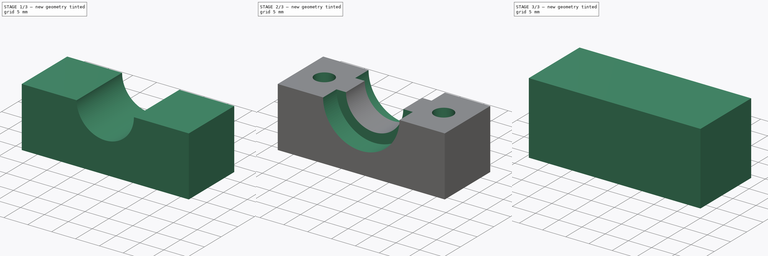
[diagram: build sequence overview — one tinted view per stage of 3, left to right]
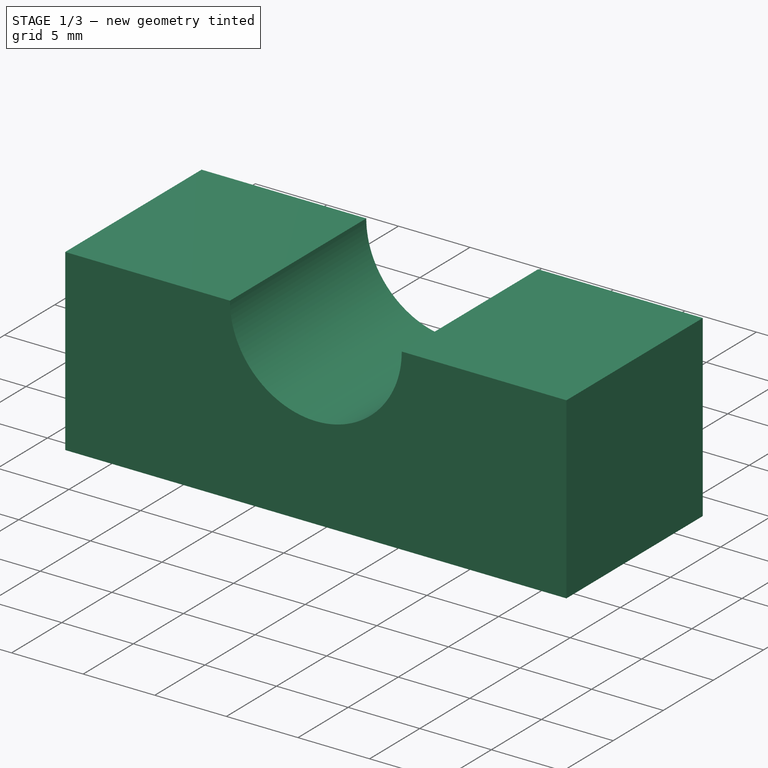
[diagram: stage 1 of 3 — iso view after this stage's code; geometry added in this stage tinted green]
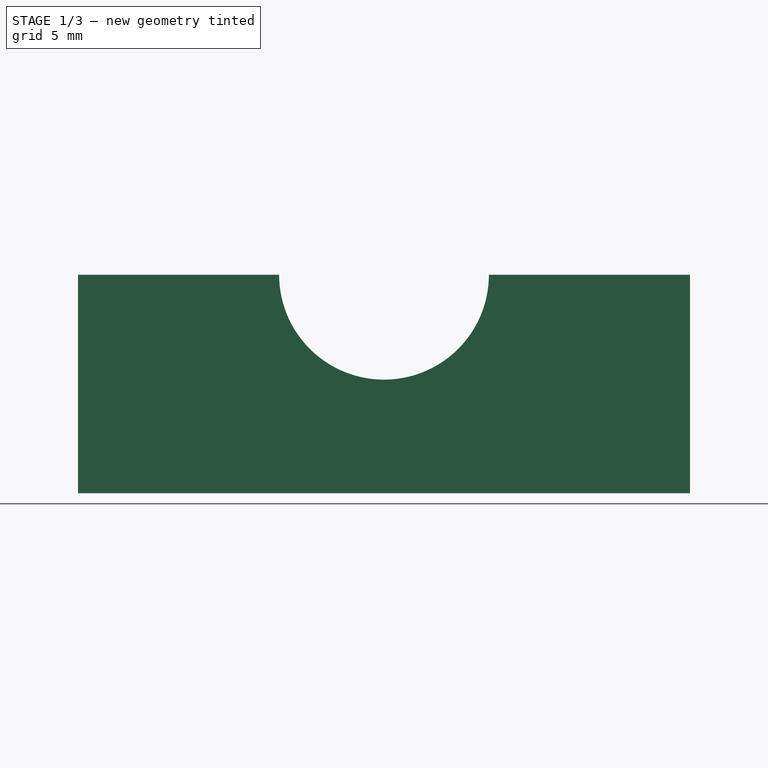
[diagram: stage 1 of 3 — front view after this stage's code; geometry added in this stage tinted green]
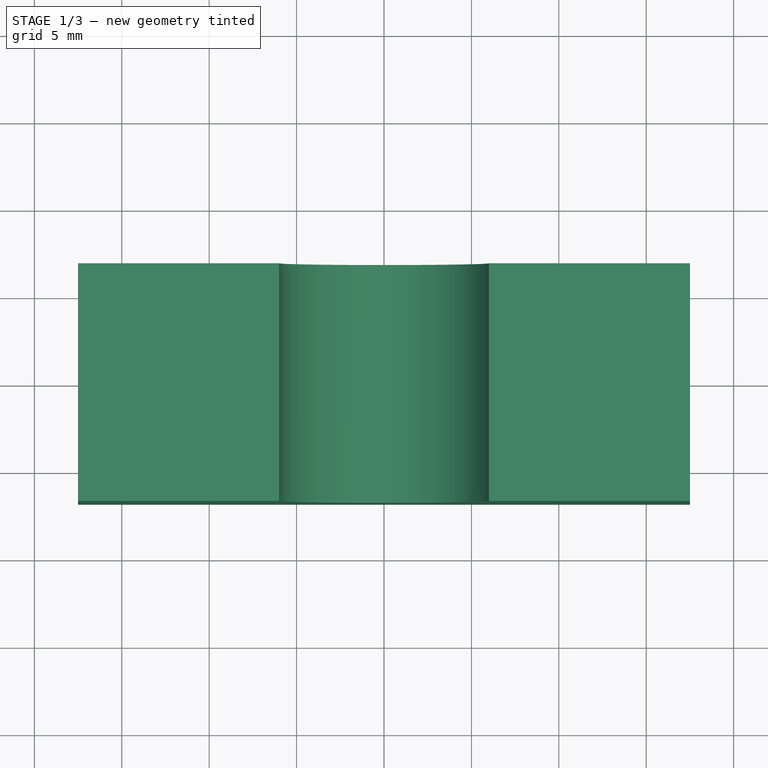
[diagram: stage 1 of 3 — top view after this stage's code; geometry added in this stage tinted green]
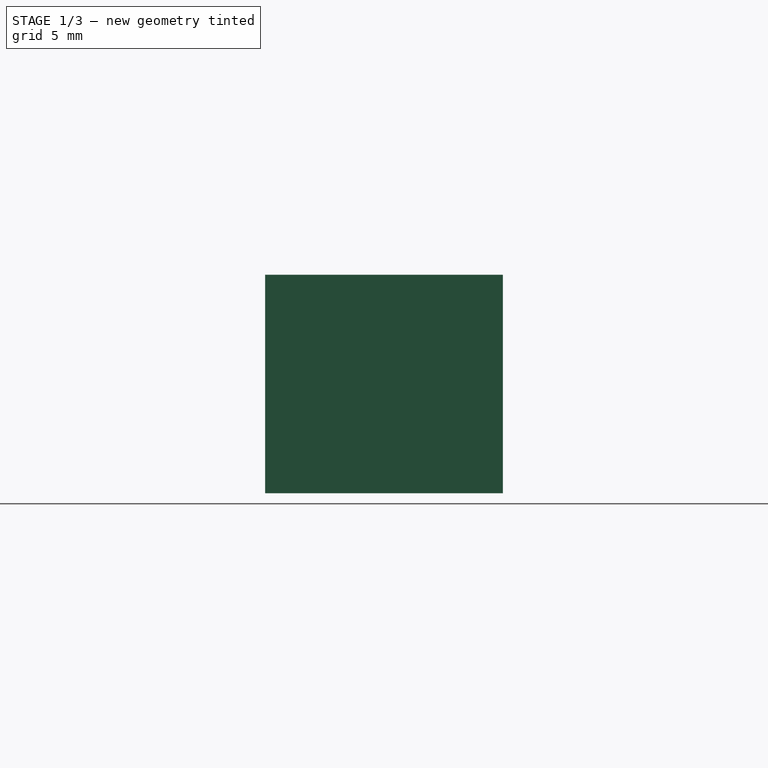
[diagram: stage 1 of 3 — right view after this stage's code; geometry added in this stage tinted green]
FCSTD DOCUMENT  (FreeCAD 0.18.3R)
Label: abrazadera_Hot_end
License: All rights reserved
LicenseURL: http://en.wikipedia.org/wiki/All_rights_reserved
objects: Path::FeaturePython×6, Sketcher::SketchObject×5, PartDesign::Pocket×4, Part::FeaturePython×2, PartDesign::Pad×1, PartDesign::Body×1, App::FeaturePython×1, App::DocumentObjectGroup×1, Path::FeatureCompoundPython×1
note: 22 computed .brp shape members not serialized (recipe doc carries the construction recipe); baked Part::Feature solids carry a one-line shape summary decoded from their .brp

FEATURE [Sketcher::SketchObject] Sketch
  MapMode = 5
  Support = -> [XY_Plane]
  sketch-geometry (4):
    g0: LineSegment StartX=-17.5 StartY=6.8 StartZ=0 EndX=17.5 EndY=6.8 EndZ=0
    g1: LineSegment StartX=17.5 StartY=6.8 StartZ=0 EndX=17.5 EndY=-6.8 EndZ=0
    g2: LineSegment StartX=17.5 StartY=-6.8 StartZ=0 EndX=-17.5 EndY=-6.8 EndZ=0
    g3: LineSegment StartX=-17.5 StartY=-6.8 StartZ=0 EndX=-17.5 EndY=6.8 EndZ=0
  constraints (11):
    c: Coincident(g0,g1)
    c: Coincident(g1,g2)
    c: Coincident(g2,g3)
    c: Coincident(g3,g0)
    c: Horizontal(g0)
    c: Horizontal(g2)
    c: Vertical(g1)
    c: Vertical(g3)
    c: Symmetric(g1,g0,g-1)
    c: DistanceX(g0,g0) = 35
    c: DistanceY(g1,g1) = 13.6
FEATURE [PartDesign::Pad] Pad
  Length = 12.5
  Length2 = 100
  Profile = -> Sketch
  Refine = true
  Type = 0
FEATURE [Sketcher::SketchObject] Sketch001
  ExternalGeometry = -> [Pad]
  MapMode = 5
  Placement = pos=(0,-6.8,0) rot=(1,0,0;1.5708rad)
  Support = -> [Pad]
  sketch-geometry (1):
    g0: Circle CenterX=0 CenterY=12.5 CenterZ=0 NormalX=0 NormalY=0 NormalZ=1 AngleXU=0 Radius=6
  constraints (3):
    c: PointOnObject(g0,g-2)
    c: PointOnObject(g0,g-3)
    c: Radius(g0) = 6
FEATURE [PartDesign::Pocket] Pocket
  BaseFeature = -> Pad
  Length = 5
  Length2 = 100
  Profile = -> Sketch001
  Refine = true
  Type = 1
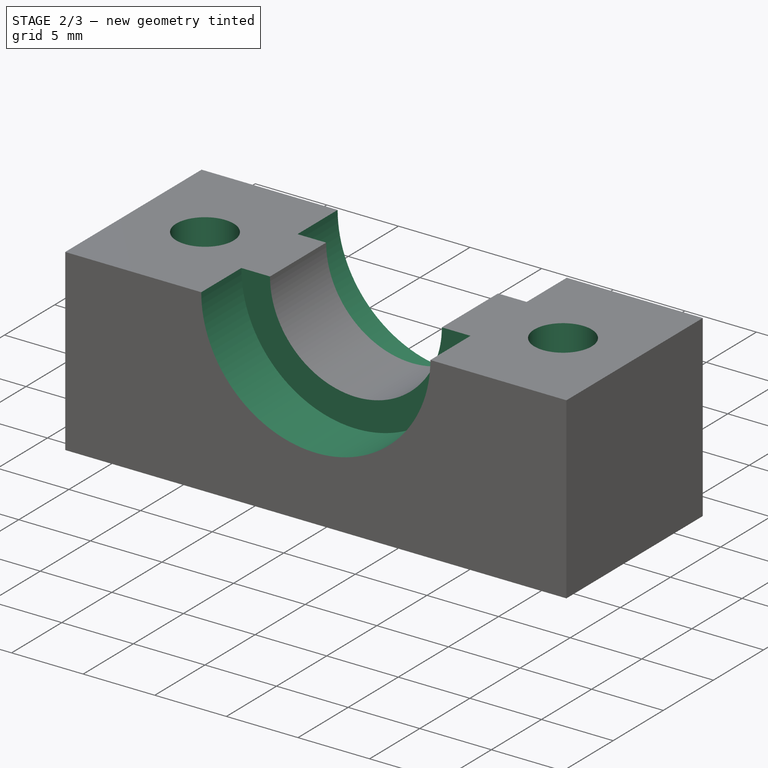
[diagram: stage 2 of 3 — iso view after this stage's code; geometry added in this stage tinted green]
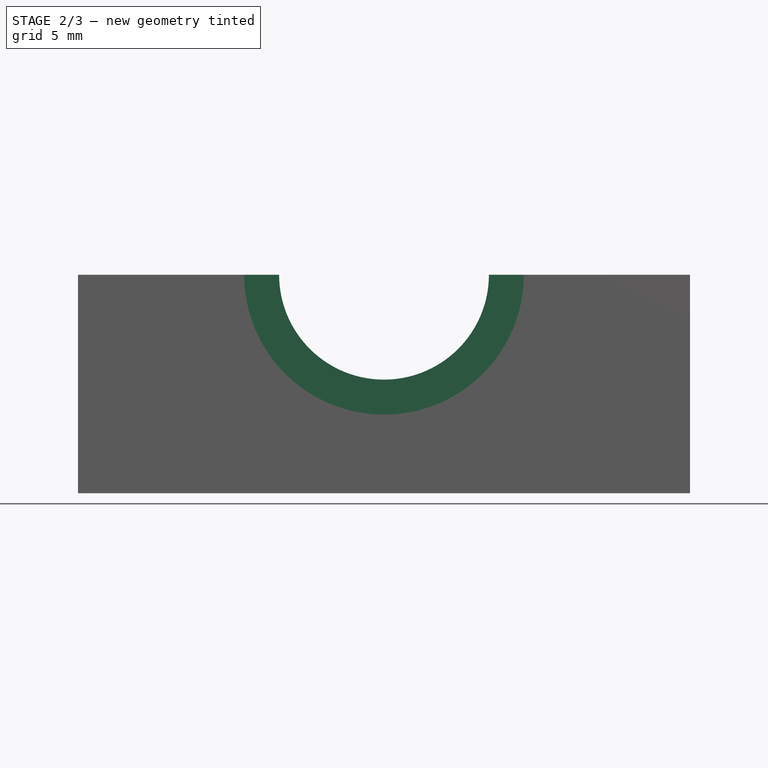
[diagram: stage 2 of 3 — front view after this stage's code; geometry added in this stage tinted green]
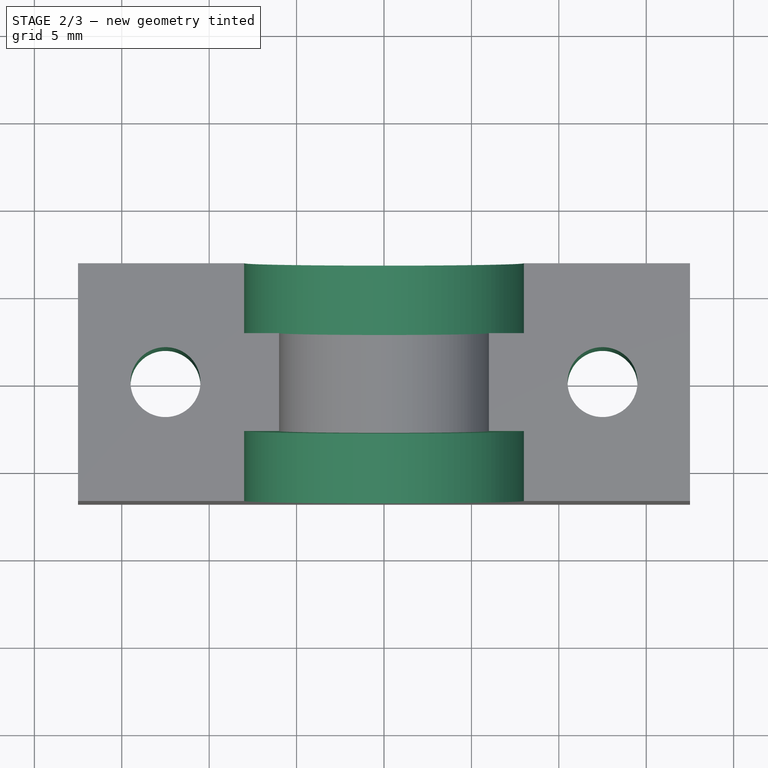
[diagram: stage 2 of 3 — top view after this stage's code; geometry added in this stage tinted green]
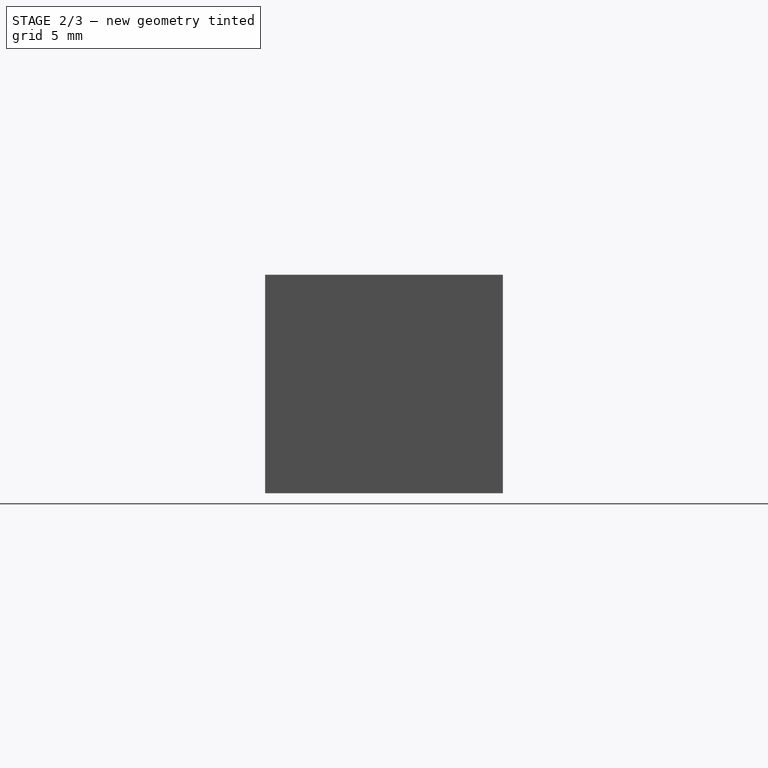
[diagram: stage 2 of 3 — right view after this stage's code; geometry added in this stage tinted green]
FEATURE [Sketcher::SketchObject] Sketch002
  MapMode = 5
  Placement = pos=(0,0,0) rot=(1,0,0;3.14159rad)
  Support = -> [Pocket]
  expr: Constraints[3] = Constraints.Rh
  sketch-geometry (2):
    g0: Circle CenterX=-12.5 CenterY=0 CenterZ=0 NormalX=0 NormalY=0 NormalZ=1 AngleXU=0 Radius=2
    g1: Circle CenterX=12.5 CenterY=0 CenterZ=0 NormalX=0 NormalY=0 NormalZ=1 AngleXU=0 Radius=2
  constraints (5):
    c: PointOnObject(g0,g-1)
    c: Radius(g0) = 2  'Rh'
    c: DistanceX(g0,g-1) = 12.5
    c: Radius(g1) = 2
    c: Symmetric(g1,g0,g-2)
FEATURE [PartDesign::Pocket] Pocket001
  BaseFeature = -> Pocket
  Length = 5
  Length2 = 100
  Profile = -> Sketch002
  Refine = true
  Type = 1
FEATURE [Sketcher::SketchObject] Sketch003
  ExternalGeometry = -> [Pocket001]
  MapMode = 5
  Placement = pos=(0,-6.8,0) rot=(1,0,0;1.5708rad)
  Support = -> [Pocket001]
  sketch-geometry (1):
    g0: Circle CenterX=0 CenterY=12.5 CenterZ=0 NormalX=0 NormalY=0 NormalZ=1 AngleXU=0 Radius=8
  constraints (2):
    c: Coincident(g0,g-3)
    c: Radius(g0) = 8
FEATURE [PartDesign::Pocket] Pocket002
  BaseFeature = -> Pocket001
  Length = 4
  Length2 = 100
  Profile = -> Sketch003
  Refine = true
  Type = 0
FEATURE [Sketcher::SketchObject] Sketch004
  ExternalGeometry = -> [Pocket002]
  MapMode = 5
  Placement = pos=(0,6.8,0) rot=(0,0.707107,0.707107;3.14159rad)
  Support = -> [Pocket002]
  sketch-geometry (1):
    g0: Circle CenterX=0 CenterY=12.5 CenterZ=0 NormalX=0 NormalY=0 NormalZ=1 AngleXU=0 Radius=8
  constraints (2):
    c: Coincident(g0,g-3)
    c: Radius(g0) = 8
FEATURE [PartDesign::Pocket] Pocket003
  BaseFeature = -> Pocket002
  Length = 4
  Length2 = 100
  Profile = -> Sketch004
  Refine = true
  Type = 0
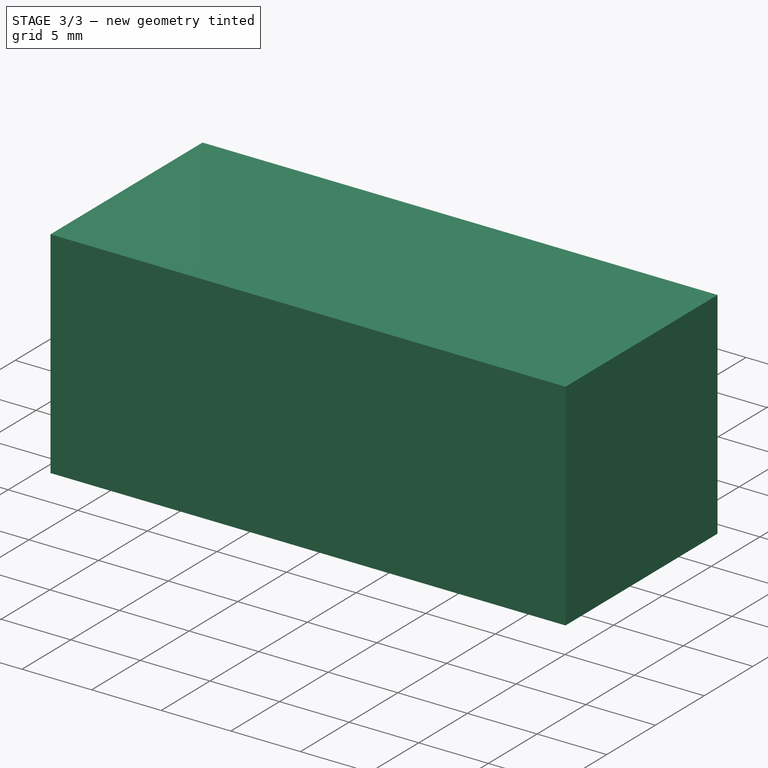
[diagram: stage 3 of 3 — iso view after this stage's code; geometry added in this stage tinted green]
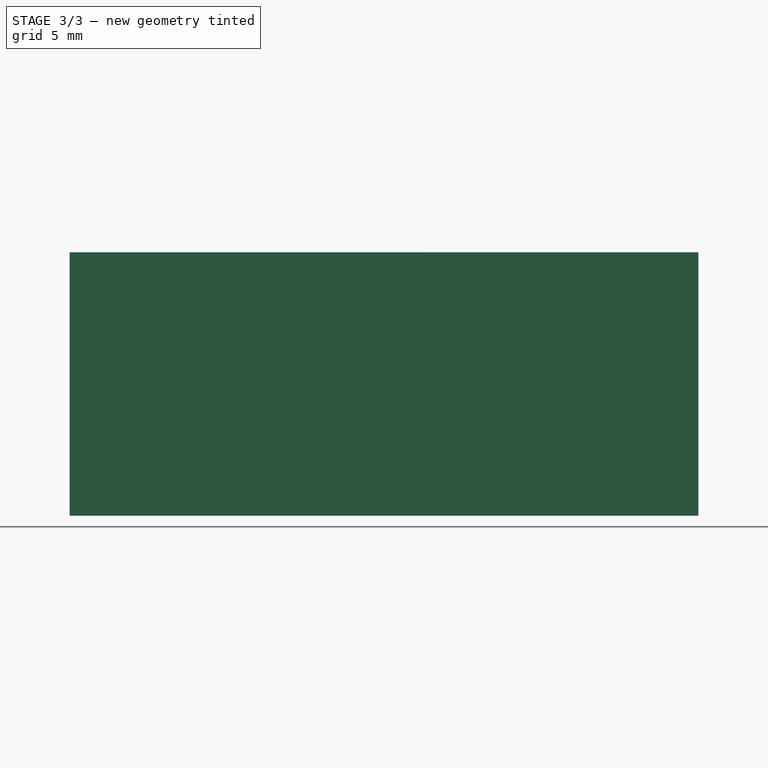
[diagram: stage 3 of 3 — front view after this stage's code; geometry added in this stage tinted green]
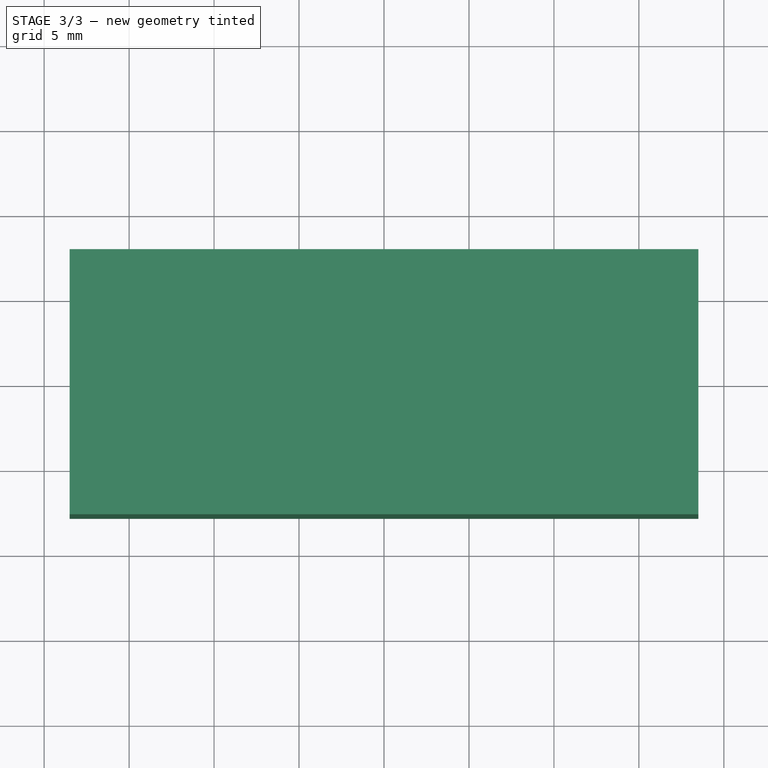
[diagram: stage 3 of 3 — top view after this stage's code; geometry added in this stage tinted green]
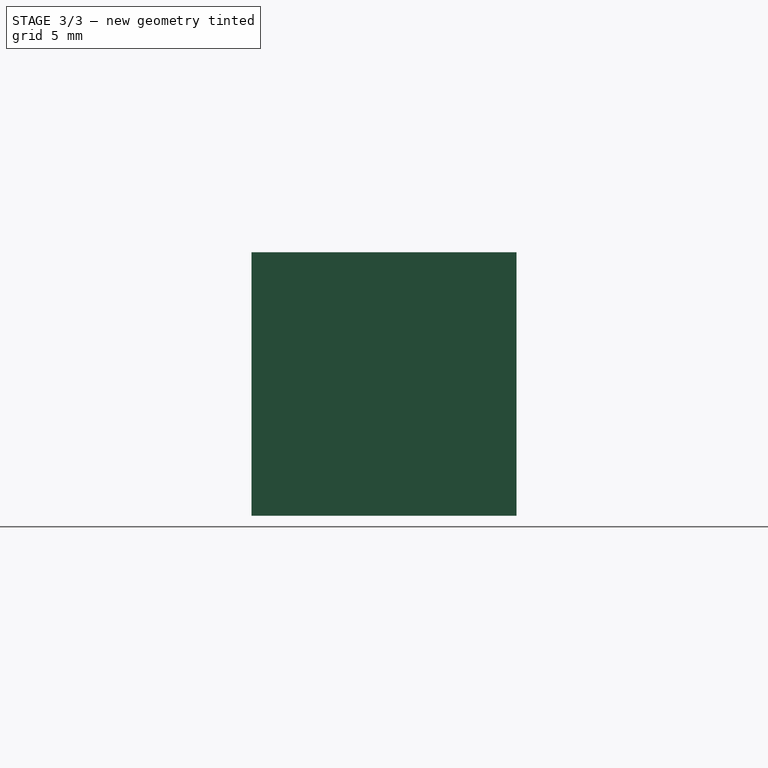
[diagram: stage 3 of 3 — right view after this stage's code; geometry added in this stage tinted green]
FEATURE [PartDesign::Body] Body
  Group = -> [Sketch,Pad,Sketch001,Pocket,Sketch002,Pocket001,Sketch003,Pocket002,Sketch004,Pocket003]
  Origin = -> Origin
  Tip = -> Pocket003
FEATURE [App::FeaturePython] SetupSheet  # Path/CAM operation (typed FeaturePython)
  ClearanceHeightExpression = OpStockZMax+SetupSheet.ClearanceHeightOffset
  ClearanceHeightOffset = 3
  FinalDepthExpression = 0
  HorizRapid = 5
  SafeHeightExpression = OpStockZMax+SetupSheet.SafeHeightOffset
  SafeHeightOffset = 3
  StartDepthExpression = 14
  StepDownExpression = 1.5
  VertRapid = 3
FEATURE [Part::FeaturePython] Clone  label="Model-Body"  # Draft clone (typed FeaturePython)
  AttacherType = Attacher::AttachEngine3D
  Fuse = false
  Objects = -> [Body]
  PathResource = Model
  Scale = (1,1,1)
FEATURE [App::DocumentObjectGroup] Model
  Group = -> [Clone]
FEATURE [Path::FeaturePython] Default_Tool  label="Default Tool"  # Path/CAM operation (typed FeaturePython)
  HorizFeed = 1.67
  HorizRapid = 5
  SpindleDir = 1
  SpindleSpeed = 0
  ToolNumber = 1
  VertFeed = 1.33
  VertRapid = 3
  expr: HorizRapid = SetupSheet.HorizRapid
  expr: VertRapid = SetupSheet.VertRapid
FEATURE [Part::FeaturePython] Stock  # WARN: FeaturePython — macro-defined, semantics opaque (R4)
  Base = -> Model
  ExtXneg = 1
  ExtXpos = 1
  ExtYneg = 1
  ExtYpos = 1
  ExtZneg = 1.5
  ExtZpos = 1.5
  Placement = pos=(-17.5,-6.8,0) rot=(0,0,1;0rad)
  StockType = FromBase
FEATURE [Path::FeaturePython] Pocket_3D  # Path/CAM operation (typed FeaturePython)
  Active = true
  AreaParams:
    Tolerance = 1e-07
    FitArcs = True
    Simplify = False
    CleanDistance = 0.0
    Accuracy = 0.01
    Unit = 1.0
    MinArcPoints = 4
    MaxArcPoints = 100
    ClipperScale = 10000000.0
    Fill = 0
    Coplanar = 0
    Reorient = True
    Outline = False
    Explode = False
    OpenMode = 0
    Deflection = 0.01
    SubjectFill = 0
    ClipFill = 0
    Offset = 0.0
    ExtraPass = 0
    Stepover = 0.0
    LastStepover = 0.0
    JoinType = 0
    EndType = 0
    MiterLimit = 2.0
    RoundPrecision = 0.0
    PocketMode = 2
    ToolRadius = 1.5
    PocketExtraOffset = 0.0
    PocketStepover = 3.0
    PocketLastStepover = 0.0
    FromCenter = True
    Angle = 45.0
    AngleShift = 0.0
    Shift = 0.0
    Thicken = False
    SectionCount = -1
    Stepdown = 1.0
    SectionOffset = 0.0
    SectionTolerance = 1e-06
    SectionMode = 2
    Project = False
  Base = -> [Clone]
  ClearanceHeight = 17
  CutMode = 0
  ExtraOffset = 0
  FinalDepth = 0
  FinishDepth = 0
  KeepToolDown = false
  MinTravel = false
  OffsetPattern = 1
  OpFinalDepth = 6.54375
  OpStartDepth = 14
  OpStockZMax = 14
  OpStockZMin = -1.5
  OpToolDiameter = 3
  PathParams = {'orientation': 1, 'feedrate': 1.67, 'feedrate_v': 1.33, 'verbose': True, 'resume_height': 17.00000000000034, 'retraction': 17.00000000000034, 'return_end': True, 'preamble': False}
  SafeHeight = 17
  StartAt = 0
  StartDepth = 13
  StartPoint = (0,0,0)
  StepDown = 1
  StepOver = 100
  ToolController = -> Default_Tool
  UseStartPoint = false
  ZigZagAngle = 45
  expr: ClearanceHeight = OpStockZMax + SetupSheet.ClearanceHeightOffset
  expr: SafeHeight = OpStockZMax + SetupSheet.SafeHeightOffset
  expr: StepDown = 1
  expr: FinalDepth = 0
  expr: StartDepth = 13
FEATURE [Path::FeaturePython] MillFace001  # Path/CAM operation (typed FeaturePython)
  Active = true
  AreaParams:
    Tolerance = 1e-07
    FitArcs = True
    Simplify = False
    CleanDistance = 0.0
    Accuracy = 0.01
    Unit = 1.0
    MinArcPoints = 4
    MaxArcPoints = 100
    ClipperScale = 10000000.0
    Fill = 0
    Coplanar = 0
    Reorient = True
    Outline = False
    Explode = False
    OpenMode = 0
    Deflection = 0.01
    SubjectFill = 0
    ClipFill = 0
    Offset = 0.0
    ExtraPass = 0
    Stepover = 0.0
    LastStepover = 0.0
    JoinType = 0
    EndType = 0
    MiterLimit = 2.0
    RoundPrecision = 0.0
    PocketMode = 4
    ToolRadius = 1.5
    PocketExtraOffset = 0.0
    PocketStepover = 2.7
    PocketLastStepover = 0.0
    FromCenter = True
    Angle = 45.0
    AngleShift = 0.0
    Shift = 0.0
    Thicken = False
    SectionCount = -1
    Stepdown = 1.0
    SectionOffset = 0.0
    SectionTolerance = 1e-06
    SectionMode = 2
    Project = False
  Base = -> [Clone]
  BoundaryShape = 0
  ClearanceHeight = 17
  CutMode = 0
  ExtraOffset = 0
  FinalDepth = 12.5
  FinishDepth = 0
  KeepToolDown = false
  MinTravel = false
  OffsetPattern = 3
  OpFinalDepth = 12.5
  OpStartDepth = 14
  OpStockZMax = 14
  OpStockZMin = -1.5
  OpToolDiameter = 3
  PathParams = {'orientation': 1, 'feedrate': 1.67, 'feedrate_v': 1.33, 'verbose': True, 'resume_height': 17.00000000000034, 'retraction': 17.00000000000034, 'return_end': True, 'preamble': False}
  SafeHeight = 17
  StartAt = 0
  StartDepth = 14
  StartPoint = (0,0,0)
  StepDown = 1.5
  StepOver = 90
  ToolController = -> Default_Tool
  UseStartPoint = false
  ZigZagAngle = 45
  expr: ClearanceHeight = OpStockZMax + SetupSheet.ClearanceHeightOffset
  expr: SafeHeight = OpStockZMax + SetupSheet.SafeHeightOffset
  expr: StepDown = 1.5
  expr: FinalDepth = 12.5
  expr: StartDepth = 14
FEATURE [Path::FeaturePython] Profile_Edges  # Path/CAM operation (typed FeaturePython)
  Active = true
  AreaParams:
    Tolerance = 1e-07
    FitArcs = True
    Simplify = False
    CleanDistance = 0.0
    Accuracy = 0.01
    Unit = 1.0
    MinArcPoints = 4
    MaxArcPoints = 100
    ClipperScale = 10000000.0
    Fill = 0
    Coplanar = 0
    Reorient = True
    Outline = False
    Explode = False
    OpenMode = 0
    Deflection = 0.01
    SubjectFill = 0
    ClipFill = 0
    Offset = -1.5
    ExtraPass = 0
    Stepover = 0.0
    LastStepover = 0.0
    JoinType = 0
    EndType = 0
    MiterLimit = 2.0
    RoundPrecision = 0.0
    PocketMode = 0
    ToolRadius = 1.0
    PocketExtraOffset = 0.0
    PocketStepover = 0.0
    PocketLastStepover = 0.0
    FromCenter = False
    Angle = 45.0
    AngleShift = 0.0
    Shift = 0.0
    Thicken = False
    SectionCount = -1
    Stepdown = 1.0
    SectionOffset = 0.0
    SectionTolerance = 1e-06
    SectionMode = 2
    Project = False
  Base = -> [Clone]
  ClearanceHeight = 17
  Direction = 0
  FinalDepth = 0
  JoinType = 0
  MiterLimit = 0.1
  OffsetExtra = 0
  OpFinalDepth = 12.5
  OpStartDepth = 14
  OpStockZMax = 14
  OpStockZMin = -1.5
  OpToolDiameter = 3
  PathParams = {'orientation': 1, 'feedrate': 1.67, 'feedrate_v': 1.33, 'verbose': True, 'resume_height': 17.00000000000034, 'retraction': 17.00000000000034, 'return_end': True, 'preamble': False}
  SafeHeight = 17
  Side = 1
  StartDepth = 13
  StartPoint = (0,0,0)
  StepDown = 1.5
  ToolController = -> Default_Tool
  UseComp = true
  UseStartPoint = false
  expr: ClearanceHeight = OpStockZMax + SetupSheet.ClearanceHeightOffset
  expr: SafeHeight = OpStockZMax + SetupSheet.SafeHeightOffset
  expr: StepDown = 1.5
  expr: FinalDepth = 0
  expr: StartDepth = 13
FEATURE [Path::FeaturePython] Contour  # Path/CAM operation (typed FeaturePython)
  Active = true
  AreaParams:
    Tolerance = 1e-07
    FitArcs = True
    Simplify = False
    CleanDistance = 0.0
    Accuracy = 0.01
    Unit = 1.0
    MinArcPoints = 4
    MaxArcPoints = 100
    ClipperScale = 10000000.0
    Fill = 0
    Coplanar = 2
    Reorient = True
    Outline = False
    Explode = False
    OpenMode = 0
    Deflection = 0.01
    SubjectFill = 0
    ClipFill = 0
    Offset = 1.5
    ExtraPass = 0
    Stepover = 0.0
    LastStepover = 0.0
    JoinType = 0
    EndType = 0
    MiterLimit = 2.0
    RoundPrecision = 0.0
    PocketMode = 0
    ToolRadius = 1.0
    PocketExtraOffset = 0.0
    PocketStepover = 0.0
    PocketLastStepover = 0.0
    FromCenter = False
    Angle = 45.0
    AngleShift = 0.0
    Shift = 0.0
    Thicken = False
    SectionCount = -1
    Stepdown = 1.0
    SectionOffset = 0.0
    SectionTolerance = 1e-06
    SectionMode = 2
    Project = False
  ClearanceHeight = 17
  Direction = 0
  FinalDepth = 0
  JoinType = 0
  MiterLimit = 0.1
  OffsetExtra = 0
  OpFinalDepth = -1.5
  OpStartDepth = 14
  OpStockZMax = 14
  OpStockZMin = -1.5
  OpToolDiameter = 3
  PathParams = {'orientation': 1, 'feedrate': 1.67, 'feedrate_v': 1.33, 'verbose': True, 'resume_height': 17.00000000000034, 'retraction': 17.00000000000034, 'return_end': True, 'preamble': False}
  SafeHeight = 17
  Side = 0
  StartDepth = 14
  StartPoint = (0,0,0)
  StepDown = 1.5
  ToolController = -> Default_Tool
  UseComp = true
  UseStartPoint = false
  expr: ClearanceHeight = OpStockZMax + SetupSheet.ClearanceHeightOffset
  expr: SafeHeight = OpStockZMax + SetupSheet.SafeHeightOffset
  expr: StepDown = 1.5
  expr: FinalDepth = 0
  expr: StartDepth = 14
FEATURE [Path::FeatureCompoundPython] Operations  # Path/CAM operation (typed FeaturePython)
  Group = -> [MillFace001,Pocket_3D,Profile_Edges,Contour]
  UsePlacements = false
FEATURE [Path::FeaturePython] Job  # Path/CAM operation (typed FeaturePython)
  GeometryTolerance = 0.01
  Model = -> Model
  Operations = -> Operations
  PostProcessor = 1
  SetupSheet = -> SetupSheet
  Stock = -> Stock
  ToolController = -> [Default_Tool]
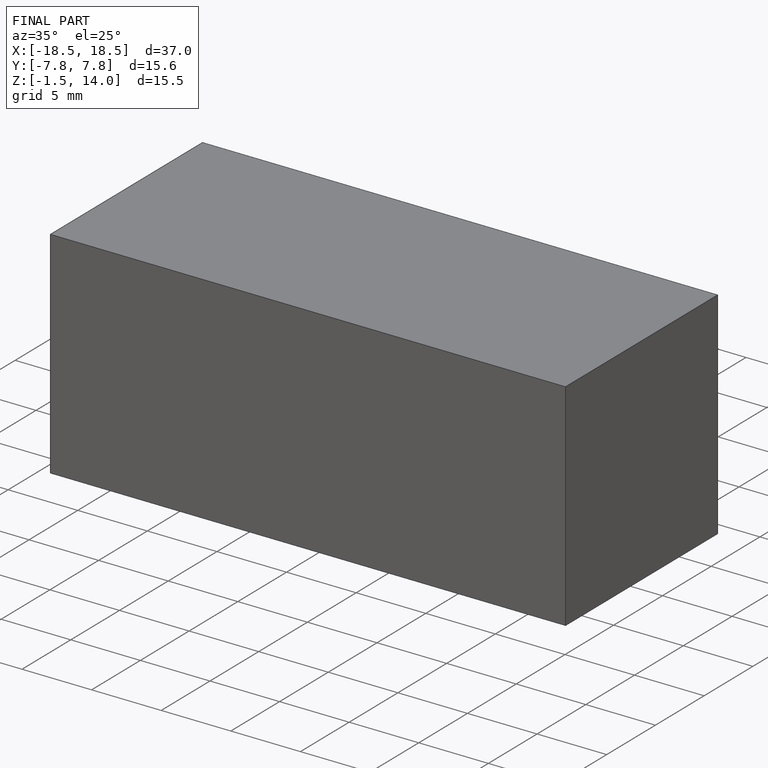
[diagram: finished part — iso view with bounding-box wireframe]
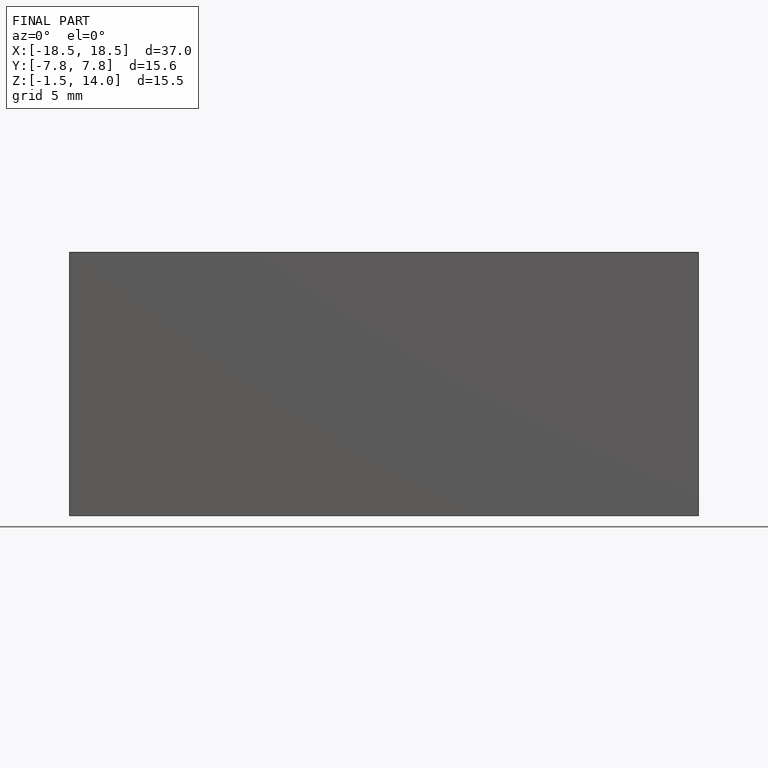
[diagram: finished part — front view with bounding-box wireframe]
